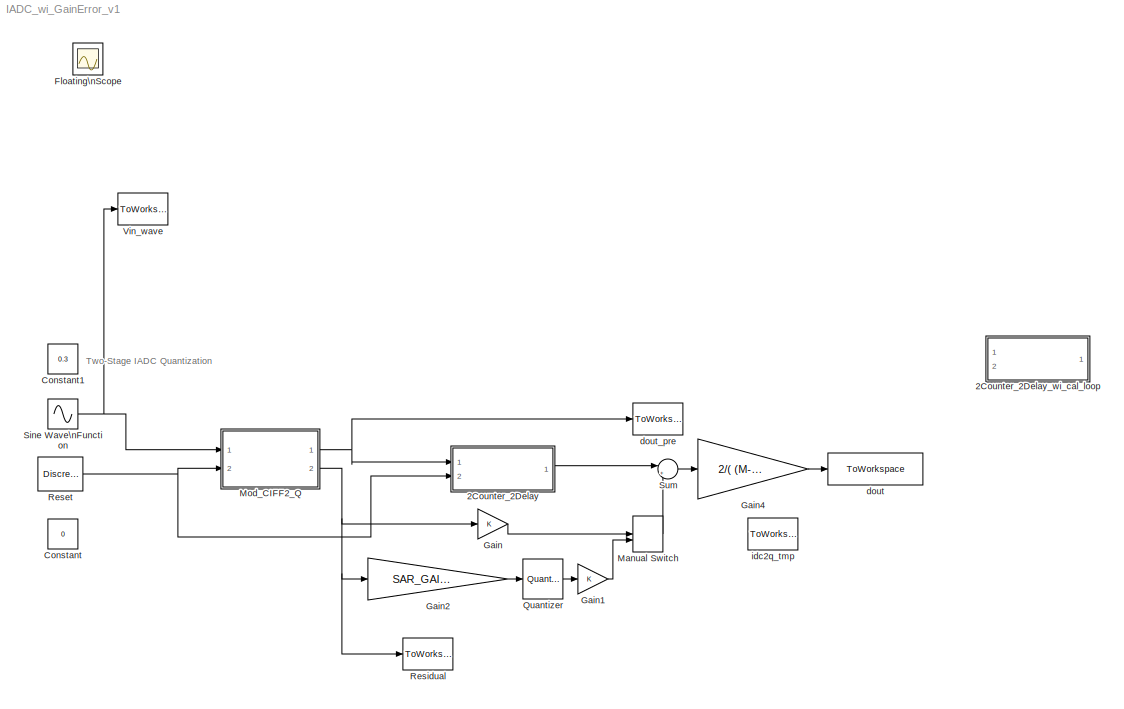
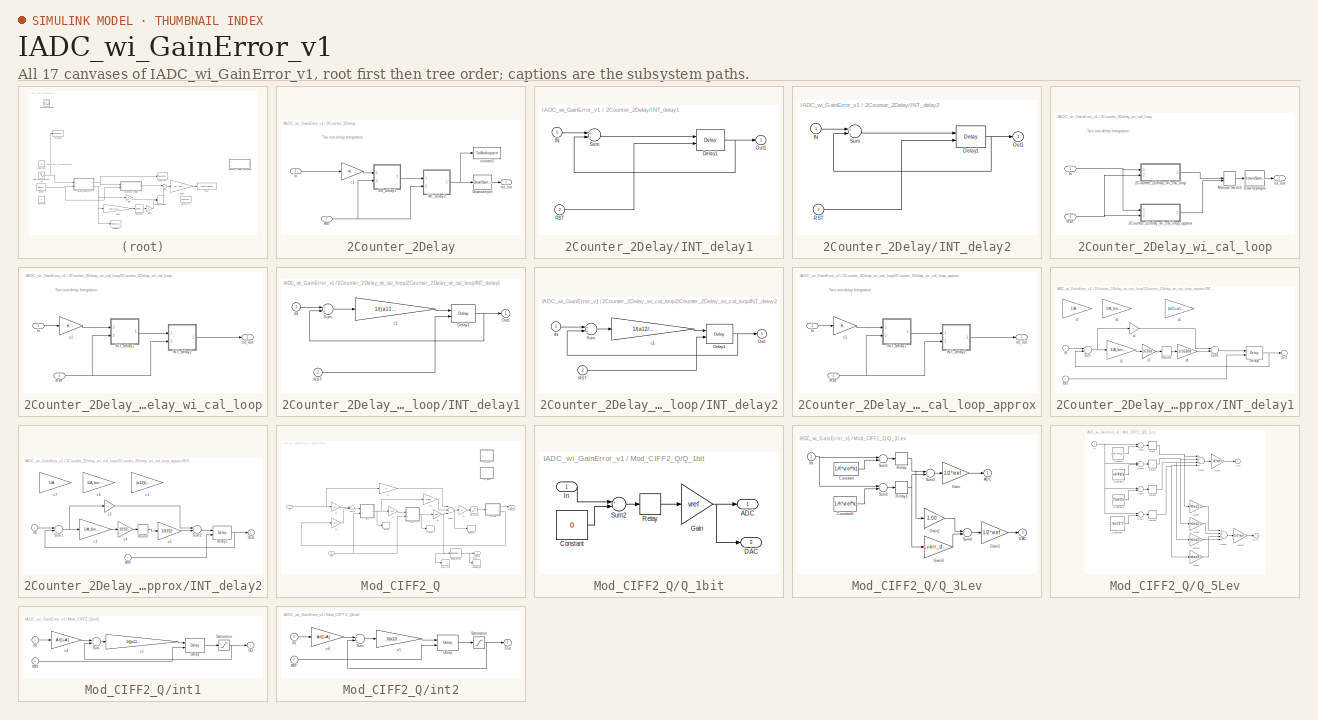
[diagram: thumbnail index - all 17 canvases of the model, root first then tree order]
MODEL IADC_wi_GainError_v1
KIND model
BLOCK [SubSystem] 2Counter_2Delay
  Ports = [2, 1]
  RequestExecContextInheritance = off
  SID = 12296
BLOCK [DownSample] 2Counter_2Delay/Downsample
  InputProcessing = Elements as channels (sample based)
  N = OSR
  RateOptions = Allow multirate processing
  SID = 12299
  phase = OSR-1
BLOCK [SubSystem] 2Counter_2Delay/INT_delay1
  Ports = [2, 1]
  RequestExecContextInheritance = off
  SID = 12872
BLOCK [Delay] 2Counter_2Delay/INT_delay1/Delay1
  DelayLength = 1
  ExternalReset = Rising
  InitialCondition = 0
  InputPortMap = u0,r5
  Ports = [2, 1]
  SID = 12875
  UserData = DataTag0
  UserDataPersistent = on
BLOCK [Inport] 2Counter_2Delay/INT_delay1/IN
  IconDisplay = Port number
  SID = 12873
BLOCK [Outport] 2Counter_2Delay/INT_delay1/Out1
  IconDisplay = Port number
  SID = 12877
  VectorParamsAs1DForOutWhenUnconnected = off
BLOCK [Inport] 2Counter_2Delay/INT_delay1/RST
  IconDisplay = Port number
  Port = 2
  SID = 12874
BLOCK [Sum] 2Counter_2Delay/INT_delay1/Sum
  Ports = [2, 1]
  SID = 12876
BLOCK [SubSystem] 2Counter_2Delay/INT_delay2
  Ports = [2, 1]
  RequestExecContextInheritance = off
  SID = 12306
BLOCK [Delay] 2Counter_2Delay/INT_delay2/Delay1
  DelayLength = 1
  ExternalReset = Rising
  InitialCondition = 0
  InputPortMap = u0,r5
  Ports = [2, 1]
  SID = 12712
  UserData = DataTag1
  UserDataPersistent = on
BLOCK [Inport] 2Counter_2Delay/INT_delay2/IN
  IconDisplay = Port number
  SID = 12307
BLOCK [Outport] 2Counter_2Delay/INT_delay2/Out1
  IconDisplay = Port number
  SID = 12311
  VectorParamsAs1DForOutWhenUnconnected = off
BLOCK [Inport] 2Counter_2Delay/INT_delay2/RST
  IconDisplay = Port number
  Port = 2
  SID = 12308
BLOCK [Sum] 2Counter_2Delay/INT_delay2/Sum
  Ports = [2, 1]
  SID = 12310
BLOCK [Inport] 2Counter_2Delay/In
  IconDisplay = Port number
  SID = 12297
BLOCK [Inport] 2Counter_2Delay/RST
  IconDisplay = Port number
  Port = 2
  SID = 12298
BLOCK [Gain] 2Counter_2Delay/c1
  SID = 12312
BLOCK [ToWorkspace] 2Counter_2Delay/counter2
  MaxDataPoints = inf
  Ports = [1]
  SID = 12616
  SampleTime = -1
  VariableName = counter2
BLOCK [Outport] 2Counter_2Delay/rst_out
  IconDisplay = Port number
  SID = 12313
  VectorParamsAs1DForOutWhenUnconnected = off
BLOCK [SubSystem] 2Counter_2Delay_wi_cal_loop
  Commented = on
  Ports = [2, 1]
  RequestExecContextInheritance = off
  SID = 12937
BLOCK [SubSystem] 2Counter_2Delay_wi_cal_loop/2Counter_2Delay_wi_cal_loop
  Ports = [2, 1]
  RequestExecContextInheritance = off
  SID = 13068
BLOCK [SubSystem] 2Counter_2Delay_wi_cal_loop/2Counter_2Delay_wi_cal_loop/INT_delay1
  Ports = [2, 1]
  RequestExecContextInheritance = off
  SID = 13072
BLOCK [Delay] 2Counter_2Delay_wi_cal_loop/2Counter_2Delay_wi_cal_loop/INT_delay1/Delay1
  DelayLength = 1
  ExternalReset = Rising
  InitialCondition = 0
  InputPortMap = u0,r5
  Ports = [2, 1]
  SID = 13075
  UserData = DataTag2
  UserDataPersistent = on
BLOCK [Inport] 2Counter_2Delay_wi_cal_loop/2Counter_2Delay_wi_cal_loop/INT_delay1/IN
  IconDisplay = Port number
  SID = 13073
BLOCK [Outport] 2Counter_2Delay_wi_cal_loop/2Counter_2Delay_wi_cal_loop/INT_delay1/Out1
  IconDisplay = Port number
  SID = 13078
  VectorParamsAs1DForOutWhenUnconnected = off
BLOCK [Inport] 2Counter_2Delay_wi_cal_loop/2Counter_2Delay_wi_cal_loop/INT_delay1/RST
  IconDisplay = Port number
  Port = 2
  SID = 13074
BLOCK [Sum] 2Counter_2Delay_wi_cal_loop/2Counter_2Delay_wi_cal_loop/INT_delay1/Sum
  Ports = [2, 1]
  SID = 13076
BLOCK [Gain] 2Counter_2Delay_wi_cal_loop/2Counter_2Delay_wi_cal_loop/INT_delay1/c1
  Gain = 1/((a11+a11)/(1+A) +1)
  SID = 13077
BLOCK [SubSystem] 2Counter_2Delay_wi_cal_loop/2Counter_2Delay_wi_cal_loop/INT_delay2
  Ports = [2, 1]
  RequestExecContextInheritance = off
  SID = 13079
BLOCK [Delay] 2Counter_2Delay_wi_cal_loop/2Counter_2Delay_wi_cal_loop/INT_delay2/Delay1
  DelayLength = 1
  ExternalReset = Rising
  InitialCondition = 0
  InputPortMap = u0,r5
  Ports = [2, 1]
  SID = 13082
  UserData = DataTag3
  UserDataPersistent = on
BLOCK [Inport] 2Counter_2Delay_wi_cal_loop/2Counter_2Delay_wi_cal_loop/INT_delay2/IN
  IconDisplay = Port number
  SID = 13080
BLOCK [Outport] 2Counter_2Delay_wi_cal_loop/2Counter_2Delay_wi_cal_loop/INT_delay2/Out1
  IconDisplay = Port number
  SID = 13085
  VectorParamsAs1DForOutWhenUnconnected = off
BLOCK [Inport] 2Counter_2Delay_wi_cal_loop/2Counter_2Delay_wi_cal_loop/INT_delay2/RST
  IconDisplay = Port number
  Port = 2
  SID = 13081
BLOCK [Sum] 2Counter_2Delay_wi_cal_loop/2Counter_2Delay_wi_cal_loop/INT_delay2/Sum
  Ports = [2, 1]
  SID = 13083
BLOCK [Gain] 2Counter_2Delay_wi_cal_loop/2Counter_2Delay_wi_cal_loop/INT_delay2/c1
  Gain = 1/(a12/(1+A) +1)
  SID = 13084
BLOCK [Inport] 2Counter_2Delay_wi_cal_loop/2Counter_2Delay_wi_cal_loop/In
  IconDisplay = Port number
  SID = 13069
BLOCK [Inport] 2Counter_2Delay_wi_cal_loop/2Counter_2Delay_wi_cal_loop/RST
  IconDisplay = Port number
  Port = 2
  SID = 13070
BLOCK [Gain] 2Counter_2Delay_wi_cal_loop/2Counter_2Delay_wi_cal_loop/c1
  SID = 13086
BLOCK [Outport] 2Counter_2Delay_wi_cal_loop/2Counter_2Delay_wi_cal_loop/rst_out
  IconDisplay = Port number
  SID = 13087
  VectorParamsAs1DForOutWhenUnconnected = off
BLOCK [SubSystem] 2Counter_2Delay_wi_cal_loop/2Counter_2Delay_wi_cal_loop_approx
  Ports = [2, 1]
  RequestExecContextInheritance = off
  SID = 13110
BLOCK [SubSystem] 2Counter_2Delay_wi_cal_loop/2Counter_2Delay_wi_cal_loop_approx/INT_delay1
  Ports = [2, 1]
  RequestExecContextInheritance = off
  SID = 13113
BLOCK [Delay] 2Counter_2Delay_wi_cal_loop/2Counter_2Delay_wi_cal_loop_approx/INT_delay1/Delay1
  DelayLength = 1
  ExternalReset = Rising
  InitialCondition = 0
  InputPortMap = u0,r5
  Ports = [2, 1]
  SID = 13116
  UserData = DataTag4
  UserDataPersistent = on
BLOCK [Inport] 2Counter_2Delay_wi_cal_loop/2Counter_2Delay_wi_cal_loop_approx/INT_delay1/IN
  IconDisplay = Port number
  SID = 13114
BLOCK [Outport] 2Counter_2Delay_wi_cal_loop/2Counter_2Delay_wi_cal_loop_approx/INT_delay1/Out1
  IconDisplay = Port number
  SID = 13119
  VectorParamsAs1DForOutWhenUnconnected = off
BLOCK [Inport] 2Counter_2Delay_wi_cal_loop/2Counter_2Delay_wi_cal_loop_approx/INT_delay1/RST
  IconDisplay = Port number
  Port = 2
  SID = 13115
BLOCK [Rounding] 2Counter_2Delay_wi_cal_loop/2Counter_2Delay_wi_cal_loop_approx/INT_delay1/Round
  Operator = round
  SID = 13133
BLOCK [Sum] 2Counter_2Delay_wi_cal_loop/2Counter_2Delay_wi_cal_loop_approx/INT_delay1/Sum
  Ports = [2, 1]
  SID = 13117
BLOCK [Sum] 2Counter_2Delay_wi_cal_loop/2Counter_2Delay_wi_cal_loop_approx/INT_delay1/Sum1
  Inputs = +-
  Ports = [2, 1]
  SID = 13131
BLOCK [Gain] 2Counter_2Delay_wi_cal_loop/2Counter_2Delay_wi_cal_loop_approx/INT_delay1/c1
  SID = 13118
BLOCK [Gain] 2Counter_2Delay_wi_cal_loop/2Counter_2Delay_wi_cal_loop_approx/INT_delay1/c2
  Gain = 1/A_binary
  SID = 13132
BLOCK [Gain] 2Counter_2Delay_wi_cal_loop/2Counter_2Delay_wi_cal_loop_approx/INT_delay1/c3
  Gain = 16384
  SID = 13134
BLOCK [Gain] 2Counter_2Delay_wi_cal_loop/2Counter_2Delay_wi_cal_loop_approx/INT_delay1/c4
  Gain = 1/16384
  SID = 13135
BLOCK [Gain] 2Counter_2Delay_wi_cal_loop/2Counter_2Delay_wi_cal_loop_approx/INT_delay1/c5
  Commented = on
  Gain = (a11+a11)/(1+A)
  SID = 13143
BLOCK [Gain] 2Counter_2Delay_wi_cal_loop/2Counter_2Delay_wi_cal_loop_approx/INT_delay1/c6
  Commented = on
  Gain = 1/A_binary
  SID = 13144
BLOCK [Gain] 2Counter_2Delay_wi_cal_loop/2Counter_2Delay_wi_cal_loop_approx/INT_delay1/c7
  Commented = on
  Gain = 1/A
  SID = 13145
BLOCK [SubSystem] 2Counter_2Delay_wi_cal_loop/2Counter_2Delay_wi_cal_loop_approx/INT_delay2
  Ports = [2, 1]
  RequestExecContextInheritance = off
  SID = 13120
BLOCK [Delay] 2Counter_2Delay_wi_cal_loop/2Counter_2Delay_wi_cal_loop_approx/INT_delay2/Delay1
  DelayLength = 1
  ExternalReset = Rising
  InitialCondition = 0
  InputPortMap = u0,r5
  Ports = [2, 1]
  SID = 13123
  UserData = DataTag5
  UserDataPersistent = on
BLOCK [Inport] 2Counter_2Delay_wi_cal_loop/2Counter_2Delay_wi_cal_loop_approx/INT_delay2/IN
  IconDisplay = Port number
  SID = 13121
BLOCK [Outport] 2Counter_2Delay_wi_cal_loop/2Counter_2Delay_wi_cal_loop_approx/INT_delay2/Out1
  IconDisplay = Port number
  SID = 13126
  VectorParamsAs1DForOutWhenUnconnected = off
BLOCK [Inport] 2Counter_2Delay_wi_cal_loop/2Counter_2Delay_wi_cal_loop_approx/INT_delay2/RST
  IconDisplay = Port number
  Port = 2
  SID = 13122
BLOCK [Rounding] 2Counter_2Delay_wi_cal_loop/2Counter_2Delay_wi_cal_loop_approx/INT_delay2/Round
  Operator = round
  SID = 13136
BLOCK [Sum] 2Counter_2Delay_wi_cal_loop/2Counter_2Delay_wi_cal_loop_approx/INT_delay2/Sum1
  Ports = [2, 1]
  SID = 13137
BLOCK [Sum] 2Counter_2Delay_wi_cal_loop/2Counter_2Delay_wi_cal_loop_approx/INT_delay2/Sum2
  Inputs = +-
  Ports = [2, 1]
  SID = 13138
BLOCK [Gain] 2Counter_2Delay_wi_cal_loop/2Counter_2Delay_wi_cal_loop_approx/INT_delay2/c1
  Commented = on
  Gain = (a12)/(1+A)
  SID = 13146
BLOCK [Gain] 2Counter_2Delay_wi_cal_loop/2Counter_2Delay_wi_cal_loop_approx/INT_delay2/c2
  SID = 13139
BLOCK [Gain] 2Counter_2Delay_wi_cal_loop/2Counter_2Delay_wi_cal_loop_approx/INT_delay2/c3
  Gain = 1/A_binary
  SID = 13140
BLOCK [Gain] 2Counter_2Delay_wi_cal_loop/2Counter_2Delay_wi_cal_loop_approx/INT_delay2/c4
  Gain = 8192
  SID = 13141
BLOCK [Gain] 2Counter_2Delay_wi_cal_loop/2Counter_2Delay_wi_cal_loop_approx/INT_delay2/c5
  Gain = 1/8192
  SID = 13142
BLOCK [Gain] 2Counter_2Delay_wi_cal_loop/2Counter_2Delay_wi_cal_loop_approx/INT_delay2/c6
  Commented = on
  Gain = 1/A_binary
  SID = 13147
BLOCK [Gain] 2Counter_2Delay_wi_cal_loop/2Counter_2Delay_wi_cal_loop_approx/INT_delay2/c7
  Commented = on
  Gain = 1/A
  SID = 13148
BLOCK [Inport] 2Counter_2Delay_wi_cal_loop/2Counter_2Delay_wi_cal_loop_approx/In
  IconDisplay = Port number
  SID = 13111
BLOCK [Inport] 2Counter_2Delay_wi_cal_loop/2Counter_2Delay_wi_cal_loop_approx/RST
  IconDisplay = Port number
  Port = 2
  SID = 13112
BLOCK [Gain] 2Counter_2Delay_wi_cal_loop/2Counter_2Delay_wi_cal_loop_approx/c1
  SID = 13127
BLOCK [Outport] 2Counter_2Delay_wi_cal_loop/2Counter_2Delay_wi_cal_loop_approx/rst_out
  IconDisplay = Port number
  SID = 13128
  VectorParamsAs1DForOutWhenUnconnected = off
BLOCK [DownSample] 2Counter_2Delay_wi_cal_loop/Downsample
  InputProcessing = Elements as channels (sample based)
  N = OSR
  RateOptions = Allow multirate processing
  SID = 12940
  phase = OSR-1
BLOCK [Inport] 2Counter_2Delay_wi_cal_loop/In
  IconDisplay = Port number
  SID = 12938
BLOCK [ManualSwitch] 2Counter_2Delay_wi_cal_loop/Manual Switch
  CurrentSetting = 0
  SID = 13130
BLOCK [Inport] 2Counter_2Delay_wi_cal_loop/RST
  IconDisplay = Port number
  Port = 2
  SID = 12939
BLOCK [Outport] 2Counter_2Delay_wi_cal_loop/rst_out
  IconDisplay = Port number
  SID = 12957
  VectorParamsAs1DForOutWhenUnconnected = off
BLOCK [Constant] Constant
  Commented = on
  SID = 12759
  Value = 0
BLOCK [Constant] Constant1
  Commented = on
  SID = 12900
  Value = 0.3
BLOCK [Scope] Floating\nScope
  Floating = off
  IOType = viewer
  NumInputPorts = 1
  Ports = []
  SID = 82
  ScopeSpecificationString = C++SS(StrPVP('Location','[376, 294, 963, 755]'),StrPVP('Open','off'),MxPVP('AxesTitles',54,'struct(''axes1'',''%<SignalLabel>'')'),StrPVP('DataFormat','StructureWithTime'),StrPVP('BlockParamSampleTime','0'),StrPVP('LimitDataPoints','on'),StrPVP('Decimation','1'),StrPVP('BlockParamSampleInput','off'))
BLOCK [Gain] Gain
  OutDataTypeStr = Inherit: Inherit via internal rule
  ParamDataTypeStr = Inherit: Inherit via internal rule
  SID = 13036
  SaturateOnIntegerOverflow = off
BLOCK [Gain] Gain1
  OutDataTypeStr = Inherit: Inherit via internal rule
  ParamDataTypeStr = Inherit: Inherit via internal rule
  SID = 13292
  SaturateOnIntegerOverflow = off
BLOCK [Gain] Gain2
  Gain = SAR_GAIN_ERROR
  OutDataTypeStr = Inherit: Inherit via internal rule
  ParamDataTypeStr = Inherit: Inherit via internal rule
  SID = 13293
  SaturateOnIntegerOverflow = off
BLOCK [Gain] Gain4
  Gain = 2/( (M-1)*(M) )
  OutDataTypeStr = Inherit: Inherit via internal rule
  ParamDataTypeStr = Inherit: Inherit via internal rule
  SID = 11902
  SaturateOnIntegerOverflow = off
BLOCK [ManualSwitch] Manual Switch
  CurrentSetting = 0
  SID = 13046
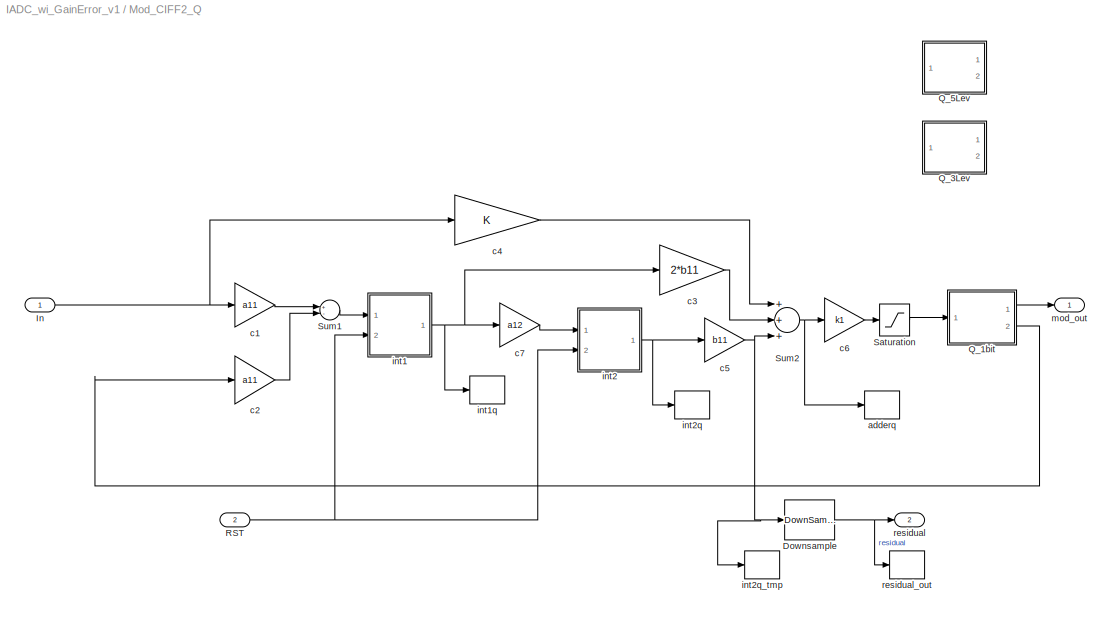
BLOCK [SubSystem] Mod_CIFF2_Q
  Ports = [2, 2]
  RequestExecContextInheritance = off
  SID = 11903
BLOCK [DownSample] Mod_CIFF2_Q/Downsample
  InputProcessing = Elements as channels (sample based)
  N = OSR
  RateOptions = Allow multirate processing
  SID = 12760
  phase = OSR-1
BLOCK [Inport] Mod_CIFF2_Q/In
  IconDisplay = Port number
  SID = 11904
BLOCK [SubSystem] Mod_CIFF2_Q/Q_1bit
  Ports = [1, 2]
  RequestExecContextInheritance = off
  SID = 11919
BLOCK [Outport] Mod_CIFF2_Q/Q_1bit/ADC
  IconDisplay = Port number
  SID = 11925
  VectorParamsAs1DForOutWhenUnconnected = off
BLOCK [Constant] Mod_CIFF2_Q/Q_1bit/Constant
  SID = 11921
  Value = 0
BLOCK [Outport] Mod_CIFF2_Q/Q_1bit/DAC
  IconDisplay = Port number
  Port = 2
  SID = 11926
  VectorParamsAs1DForOutWhenUnconnected = off
BLOCK [Gain] Mod_CIFF2_Q/Q_1bit/Gain
  Gain = vref
  OutDataTypeStr = Inherit: Inherit via internal rule
  ParamDataTypeStr = Inherit: Inherit via internal rule
  SID = 11922
  SaturateOnIntegerOverflow = off
BLOCK [Inport] Mod_CIFF2_Q/Q_1bit/In
  IconDisplay = Port number
  SID = 11920
BLOCK [Relay] Mod_CIFF2_Q/Q_1bit/Relay
  OffOutputValue = -1
  SID = 11923
  SampleTime = tclk
BLOCK [Sum] Mod_CIFF2_Q/Q_1bit/Sum2
  Inputs = +-
  Ports = [2, 1]
  SID = 11924
BLOCK [SubSystem] Mod_CIFF2_Q/Q_3Lev
  Commented = on
  Ports = [1, 2]
  RequestExecContextInheritance = off
  SID = 12583
BLOCK [Outport] Mod_CIFF2_Q/Q_3Lev/ADC
  IconDisplay = Port number
  SID = 12597
  VectorParamsAs1DForOutWhenUnconnected = off
BLOCK [Constant] Mod_CIFF2_Q/Q_3Lev/Constant
  SID = 12585
  Value = 1/4*vref*k1
BLOCK [Constant] Mod_CIFF2_Q/Q_3Lev/Constant1
  SID = 12586
  Value = -1/4*vref*k1
BLOCK [Outport] Mod_CIFF2_Q/Q_3Lev/DAC
  IconDisplay = Port number
  Port = 2
  SID = 12598
  VectorParamsAs1DForOutWhenUnconnected = off
BLOCK [Gain] Mod_CIFF2_Q/Q_3Lev/Gain
  Gain = 1/2*vref
  OutDataTypeStr = Inherit: Inherit via internal rule
  ParamDataTypeStr = Inherit: Inherit via internal rule
  SID = 12587
  SaturateOnIntegerOverflow = off
BLOCK [Gain] Mod_CIFF2_Q/Q_3Lev/Gain1
  Gain = 1/2*vref
  OutDataTypeStr = Inherit: Inherit via internal rule
  ParamDataTypeStr = Inherit: Inherit via internal rule
  SID = 12588
  SaturateOnIntegerOverflow = off
BLOCK [Gain] Mod_CIFF2_Q/Q_3Lev/Gain2
  Gain = 1.00
  OutDataTypeStr = Inherit: Inherit via internal rule
  ParamDataTypeStr = Inherit: Inherit via internal rule
  SID = 12589
  SaturateOnIntegerOverflow = off
BLOCK [Gain] Mod_CIFF2_Q/Q_3Lev/Gain3
  Gain = 1+err_dac
  OutDataTypeStr = Inherit: Inherit via internal rule
  ParamDataTypeStr = Inherit: Inherit via internal rule
  SID = 12590
  SaturateOnIntegerOverflow = off
BLOCK [Inport] Mod_CIFF2_Q/Q_3Lev/IN
  IconDisplay = Port number
  SID = 12584
BLOCK [Relay] Mod_CIFF2_Q/Q_3Lev/Relay
  OffOutputValue = -1
  SID = 12591
  SampleTime = tclk
BLOCK [Relay] Mod_CIFF2_Q/Q_3Lev/Relay1
  OffOutputValue = -1
  SID = 12592
  SampleTime = tclk
BLOCK [Sum] Mod_CIFF2_Q/Q_3Lev/Sum1
  Inputs = +-
  Ports = [2, 1]
  SID = 12593
BLOCK [Sum] Mod_CIFF2_Q/Q_3Lev/Sum2
  Inputs = +-
  Ports = [2, 1]
  SID = 12594
BLOCK [Sum] Mod_CIFF2_Q/Q_3Lev/Sum3
  Ports = [2, 1]
  SID = 12595
BLOCK [Sum] Mod_CIFF2_Q/Q_3Lev/Sum4
  Ports = [2, 1]
  SID = 12596
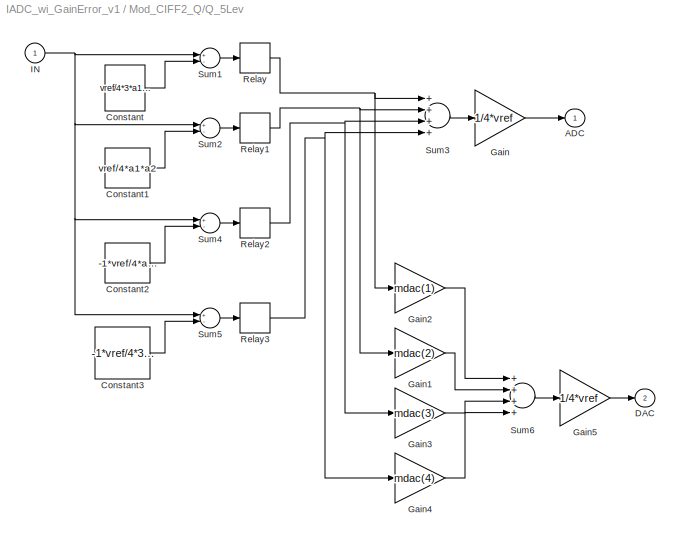
BLOCK [SubSystem] Mod_CIFF2_Q/Q_5Lev
  Commented = on
  Ports = [1, 2]
  RequestExecContextInheritance = off
  SID = 12559
BLOCK [Outport] Mod_CIFF2_Q/Q_5Lev/ADC
  IconDisplay = Port number
  SID = 12581
  VectorParamsAs1DForOutWhenUnconnected = off
BLOCK [Constant] Mod_CIFF2_Q/Q_5Lev/Constant
  SID = 12561
  Value = vref/4*3*a1*a2
BLOCK [Constant] Mod_CIFF2_Q/Q_5Lev/Constant1
  SID = 12562
  Value = vref/4*a1*a2
BLOCK [Constant] Mod_CIFF2_Q/Q_5Lev/Constant2
  SID = 12563
  Value = -1*vref/4*a1*a2
BLOCK [Constant] Mod_CIFF2_Q/Q_5Lev/Constant3
  SID = 12564
  Value = -1*vref/4*3*a1*a2
BLOCK [Outport] Mod_CIFF2_Q/Q_5Lev/DAC
  IconDisplay = Port number
  Port = 2
  SID = 12582
  VectorParamsAs1DForOutWhenUnconnected = off
BLOCK [Gain] Mod_CIFF2_Q/Q_5Lev/Gain
  Gain = 1/4*vref
  OutDataTypeStr = Inherit: Inherit via internal rule
  ParamDataTypeStr = Inherit: Inherit via internal rule
  SID = 12565
  SaturateOnIntegerOverflow = off
BLOCK [Gain] Mod_CIFF2_Q/Q_5Lev/Gain1
  Gain = mdac(2)
  OutDataTypeStr = Inherit: Inherit via internal rule
  ParamDataTypeStr = Inherit: Inherit via internal rule
  SID = 12566
  SaturateOnIntegerOverflow = off
BLOCK [Gain] Mod_CIFF2_Q/Q_5Lev/Gain2
  Gain = mdac(1)
  OutDataTypeStr = Inherit: Inherit via internal rule
  ParamDataTypeStr = Inherit: Inherit via internal rule
  SID = 12567
  SaturateOnIntegerOverflow = off
BLOCK [Gain] Mod_CIFF2_Q/Q_5Lev/Gain3
  Gain = mdac(3)
  OutDataTypeStr = Inherit: Inherit via internal rule
  ParamDataTypeStr = Inherit: Inherit via internal rule
  SID = 12568
  SaturateOnIntegerOverflow = off
BLOCK [Gain] Mod_CIFF2_Q/Q_5Lev/Gain4
  Gain = mdac(4)
  OutDataTypeStr = Inherit: Inherit via internal rule
  ParamDataTypeStr = Inherit: Inherit via internal rule
  SID = 12569
  SaturateOnIntegerOverflow = off
BLOCK [Gain] Mod_CIFF2_Q/Q_5Lev/Gain5
  Gain = 1/4*vref
  OutDataTypeStr = Inherit: Inherit via internal rule
  ParamDataTypeStr = Inherit: Inherit via internal rule
  SID = 12570
  SaturateOnIntegerOverflow = off
BLOCK [Inport] Mod_CIFF2_Q/Q_5Lev/IN
  IconDisplay = Port number
  SID = 12560
BLOCK [Relay] Mod_CIFF2_Q/Q_5Lev/Relay
  OffOutputValue = -1
  SID = 12571
  SampleTime = tclk
BLOCK [Relay] Mod_CIFF2_Q/Q_5Lev/Relay1
  OffOutputValue = -1
  SID = 12572
  SampleTime = tclk
BLOCK [Relay] Mod_CIFF2_Q/Q_5Lev/Relay2
  OffOutputValue = -1
  SID = 12573
  SampleTime = tclk
BLOCK [Relay] Mod_CIFF2_Q/Q_5Lev/Relay3
  OffOutputValue = -1
  SID = 12574
  SampleTime = tclk
BLOCK [Sum] Mod_CIFF2_Q/Q_5Lev/Sum1
  Inputs = +-
  Ports = [2, 1]
  SID = 12575
BLOCK [Sum] Mod_CIFF2_Q/Q_5Lev/Sum2
  Inputs = +-
  Ports = [2, 1]
  SID = 12576
BLOCK [Sum] Mod_CIFF2_Q/Q_5Lev/Sum3
  Inputs = ++++
  Ports = [4, 1]
  SID = 12577
BLOCK [Sum] Mod_CIFF2_Q/Q_5Lev/Sum4
  Inputs = +-
  Ports = [2, 1]
  SID = 12578
BLOCK [Sum] Mod_CIFF2_Q/Q_5Lev/Sum5
  Inputs = +-
  Ports = [2, 1]
  SID = 12579
BLOCK [Sum] Mod_CIFF2_Q/Q_5Lev/Sum6
  Inputs = ++++
  Ports = [4, 1]
  SID = 12580
BLOCK [Inport] Mod_CIFF2_Q/RST
  IconDisplay = Port number
  Port = 2
  SID = 11905
BLOCK [Saturate] Mod_CIFF2_Q/Saturation
  InputPortMap = u0
  LowerLimit = -1*adder_max
  Ports = [1, 1]
  SID = 11967
  UpperLimit = adder_max*1
BLOCK [Sum] Mod_CIFF2_Q/Sum1
  Inputs = +-
  Ports = [2, 1]
  SID = 11968
BLOCK [Sum] Mod_CIFF2_Q/Sum2
  Inputs = +++
  Ports = [3, 1]
  SID = 11969
BLOCK [ToWorkspace] Mod_CIFF2_Q/adderq
  MaxDataPoints = inf
  Ports = [1]
  SID = 12749
  SampleTime = -1
  VariableName = adderq
BLOCK [Gain] Mod_CIFF2_Q/c1
  Gain = a11
  SID = 11970
BLOCK [Gain] Mod_CIFF2_Q/c2
  Gain = a11
  SID = 11971
BLOCK [Gain] Mod_CIFF2_Q/c3
  Gain = 2*b11
  SID = 11972
BLOCK [Gain] Mod_CIFF2_Q/c4
  SID = 11973
BLOCK [Gain] Mod_CIFF2_Q/c5
  Gain = b11
  SID = 11974
BLOCK [Gain] Mod_CIFF2_Q/c6
  Gain = k1
  SID = 11975
BLOCK [Gain] Mod_CIFF2_Q/c7
  Gain = a12
  SID = 12906
BLOCK [SubSystem] Mod_CIFF2_Q/int1
  Ports = [2, 1]
  RequestExecContextInheritance = off
  SID = 12646
BLOCK [Delay] Mod_CIFF2_Q/int1/Delay
  DelayLength = 1
  ExternalReset = Rising
  InitialCondition = 0
  InputPortMap = u0,r5
  Ports = [2, 1]
  SID = 12649
  UserData = DataTag6
  UserDataPersistent = on
BLOCK [Inport] Mod_CIFF2_Q/int1/IN
  IconDisplay = Port number
  SID = 12647
BLOCK [Outport] Mod_CIFF2_Q/int1/Out
  IconDisplay = Port number
  SID = 12653
  VectorParamsAs1DForOutWhenUnconnected = off
BLOCK [Inport] Mod_CIFF2_Q/int1/RST
  IconDisplay = Port number
  Port = 2
  SID = 12648
BLOCK [Saturate] Mod_CIFF2_Q/int1/Saturation
  InputPortMap = u0
  LowerLimit = -1*Amax
  Ports = [1, 1]
  SID = 12650
  UpperLimit = Amax
BLOCK [Sum] Mod_CIFF2_Q/int1/Sum
  Ports = [2, 1]
  SID = 12651
BLOCK [Gain] Mod_CIFF2_Q/int1/c1
  Gain = 1/((a11+a11)/(1+A) +1)
  SID = 12925
BLOCK [Gain] Mod_CIFF2_Q/int1/c4
  Gain = A/(1+A)
  SID = 12904
BLOCK [ToWorkspace] Mod_CIFF2_Q/int1q
  MaxDataPoints = inf
  Ports = [1]
  SID = 11976
  SampleTime = -1
  VariableName = int1q
BLOCK [SubSystem] Mod_CIFF2_Q/int2
  Ports = [2, 1]
  RequestExecContextInheritance = off
  SID = 12926
BLOCK [Delay] Mod_CIFF2_Q/int2/Delay
  DelayLength = 1
  ExternalReset = Rising
  InitialCondition = 0
  InputPortMap = u0,r5
  Ports = [2, 1]
  SID = 12929
  UserData = DataTag7
  UserDataPersistent = on
BLOCK [Inport] Mod_CIFF2_Q/int2/IN
  IconDisplay = Port number
  SID = 12927
BLOCK [Outport] Mod_CIFF2_Q/int2/Out
  IconDisplay = Port number
  SID = 12934
  VectorParamsAs1DForOutWhenUnconnected = off
BLOCK [Inport] Mod_CIFF2_Q/int2/RST
  IconDisplay = Port number
  Port = 2
  SID = 12928
BLOCK [Saturate] Mod_CIFF2_Q/int2/Saturation
  InputPortMap = u0
  LowerLimit = -1*Amax
  Ports = [1, 1]
  SID = 12930
  UpperLimit = Amax
BLOCK [Sum] Mod_CIFF2_Q/int2/Sum
  Ports = [2, 1]
  SID = 12931
BLOCK [Gain] Mod_CIFF2_Q/int2/c1
  Gain = 1/(a12/(1+A) +1)
  SID = 12932
BLOCK [Gain] Mod_CIFF2_Q/int2/c4
  Gain = A/(1+A)
  SID = 12933
BLOCK [ToWorkspace] Mod_CIFF2_Q/int2q
  MaxDataPoints = inf
  Ports = [1]
  SID = 11977
  SampleTime = -1
  VariableName = int2q
BLOCK [ToWorkspace] Mod_CIFF2_Q/int2q_tmp
  MaxDataPoints = inf
  Ports = [1]
  SID = 12871
  SampleTime = -1
  VariableName = int2q_tmp
BLOCK [Outport] Mod_CIFF2_Q/mod_out
  IconDisplay = Port number
  SID = 11988
  VectorParamsAs1DForOutWhenUnconnected = off
BLOCK [Outport] Mod_CIFF2_Q/residual
  IconDisplay = Port number
  Port = 2
  SID = 12761
  VectorParamsAs1DForOutWhenUnconnected = off
BLOCK [ToWorkspace] Mod_CIFF2_Q/residual_out
  MaxDataPoints = inf
  Ports = [1]
  SID = 12846
  SampleTime = -1
  VariableName = residual
BLOCK [Quantizer] Quantizer
  LinearizeAsGain = off
  QuantizationInterval = vfs/1024
  SID = 13043
BLOCK [DiscretePulseGenerator] Reset
  Period = OSR
  Ports = [0, 1]
  SID = 3
  SampleTime = tclk
BLOCK [ToWorkspace] Residual
  Commented = on
  MaxDataPoints = inf
  Ports = [1]
  SID = 13040
  SampleTime = -1
  VariableName = Residual
BLOCK [Sin] Sine Wave\nFunction
  Amplitude = vin_amp
  Frequency = fsig*2*pi
  Ports = [0, 1]
  SID = 12750
  SampleTime = tclk
BLOCK [Sum] Sum
  IconShape = round
  InputSameDT = off
  Inputs = |++
  OutDataTypeStr = Inherit: Inherit via internal rule
  Ports = [2, 1]
  SID = 12869
  SaturateOnIntegerOverflow = off
BLOCK [ToWorkspace] Vin_wave
  Commented = on
  MaxDataPoints = inf
  Ports = [1]
  SID = 13045
  SampleTime = -1
  VariableName = Vin_wave
BLOCK [ToWorkspace] dout
  MaxDataPoints = inf
  Ports = [1]
  SID = 12033
  SampleTime = -1
  VariableName = out_no_cal
BLOCK [ToWorkspace] dout_pre
  MaxDataPoints = inf
  Ports = [1]
  SID = 12740
  SampleTime = -1
  VariableName = dout_pre
BLOCK [ToWorkspace] idc2q_tmp
  Commented = on
  MaxDataPoints = inf
  Ports = [1]
  SID = 12870
  SampleTime = -1
  VariableName = idc2q_tmp
ANNOTATION (root): Two-Stage IADC Quantization
ANNOTATION 2Counter_2Delay: Two non-delay Integrators
ANNOTATION 2Counter_2Delay_wi_cal_loop: Two non-delay Integrators
ANNOTATION 2Counter_2Delay_wi_cal_loop/2Counter_2Delay_wi_cal_loop: Two non-delay Integrators
ANNOTATION 2Counter_2Delay_wi_cal_loop/2Counter_2Delay_wi_cal_loop_approx: Two non-delay Integrators
LINE 2Counter_2Delay/Downsample:1 -> 2Counter_2Delay/rst_out:1
NET 2Counter_2Delay/INT_delay1/Delay1:1 -> 2Counter_2Delay/INT_delay1/Out1:1, 2Counter_2Delay/INT_delay1/Sum:2
LINE 2Counter_2Delay/INT_delay1/IN:1 -> 2Counter_2Delay/INT_delay1/Sum:1
LINE 2Counter_2Delay/INT_delay1/RST:1 -> 2Counter_2Delay/INT_delay1/Delay1:2
LINE 2Counter_2Delay/INT_delay1/Sum:1 -> 2Counter_2Delay/INT_delay1/Delay1:1
LINE 2Counter_2Delay/INT_delay1:1 -> 2Counter_2Delay/INT_delay2:1
NET 2Counter_2Delay/INT_delay2/Delay1:1 -> 2Counter_2Delay/INT_delay2/Out1:1, 2Counter_2Delay/INT_delay2/Sum:2
LINE 2Counter_2Delay/INT_delay2/IN:1 -> 2Counter_2Delay/INT_delay2/Sum:1
LINE 2Counter_2Delay/INT_delay2/RST:1 -> 2Counter_2Delay/INT_delay2/Delay1:2
LINE 2Counter_2Delay/INT_delay2/Sum:1 -> 2Counter_2Delay/INT_delay2/Delay1:1
NET 2Counter_2Delay/INT_delay2:1 -> 2Counter_2Delay/Downsample:1, 2Counter_2Delay/counter2:1
LINE 2Counter_2Delay/In:1 -> 2Counter_2Delay/c1:1
NET 2Counter_2Delay/RST:1 -> 2Counter_2Delay/INT_delay1:2, 2Counter_2Delay/INT_delay2:2
LINE 2Counter_2Delay/c1:1 -> 2Counter_2Delay/INT_delay1:1
LINE 2Counter_2Delay:1 -> Sum:1
NET 2Counter_2Delay_wi_cal_loop/2Counter_2Delay_wi_cal_loop/INT_delay1/Delay1:1 -> 2Counter_2Delay_wi_cal_loop/2Counter_2Delay_wi_cal_loop/INT_delay1/Out1:1, 2Counter_2Delay_wi_cal_loop/2Counter_2Delay_wi_cal_loop/INT_delay1/Sum:2
LINE 2Counter_2Delay_wi_cal_loop/2Counter_2Delay_wi_cal_loop/INT_delay1/IN:1 -> 2Counter_2Delay_wi_cal_loop/2Counter_2Delay_wi_cal_loop/INT_delay1/Sum:1
LINE 2Counter_2Delay_wi_cal_loop/2Counter_2Delay_wi_cal_loop/INT_delay1/RST:1 -> 2Counter_2Delay_wi_cal_loop/2Counter_2Delay_wi_cal_loop/INT_delay1/Delay1:2
LINE 2Counter_2Delay_wi_cal_loop/2Counter_2Delay_wi_cal_loop/INT_delay1/Sum:1 -> 2Counter_2Delay_wi_cal_loop/2Counter_2Delay_wi_cal_loop/INT_delay1/c1:1
LINE 2Counter_2Delay_wi_cal_loop/2Counter_2Delay_wi_cal_loop/INT_delay1/c1:1 -> 2Counter_2Delay_wi_cal_loop/2Counter_2Delay_wi_cal_loop/INT_delay1/Delay1:1
LINE 2Counter_2Delay_wi_cal_loop/2Counter_2Delay_wi_cal_loop/INT_delay1:1 -> 2Counter_2Delay_wi_cal_loop/2Counter_2Delay_wi_cal_loop/INT_delay2:1
NET 2Counter_2Delay_wi_cal_loop/2Counter_2Delay_wi_cal_loop/INT_delay2/Delay1:1 -> 2Counter_2Delay_wi_cal_loop/2Counter_2Delay_wi_cal_loop/INT_delay2/Out1:1, 2Counter_2Delay_wi_cal_loop/2Counter_2Delay_wi_cal_loop/INT_delay2/Sum:2
LINE 2Counter_2Delay_wi_cal_loop/2Counter_2Delay_wi_cal_loop/INT_delay2/IN:1 -> 2Counter_2Delay_wi_cal_loop/2Counter_2Delay_wi_cal_loop/INT_delay2/Sum:1
LINE 2Counter_2Delay_wi_cal_loop/2Counter_2Delay_wi_cal_loop/INT_delay2/RST:1 -> 2Counter_2Delay_wi_cal_loop/2Counter_2Delay_wi_cal_loop/INT_delay2/Delay1:2
LINE 2Counter_2Delay_wi_cal_loop/2Counter_2Delay_wi_cal_loop/INT_delay2/Sum:1 -> 2Counter_2Delay_wi_cal_loop/2Counter_2Delay_wi_cal_loop/INT_delay2/c1:1
LINE 2Counter_2Delay_wi_cal_loop/2Counter_2Delay_wi_cal_loop/INT_delay2/c1:1 -> 2Counter_2Delay_wi_cal_loop/2Counter_2Delay_wi_cal_loop/INT_delay2/Delay1:1
LINE 2Counter_2Delay_wi_cal_loop/2Counter_2Delay_wi_cal_loop/INT_delay2:1 -> 2Counter_2Delay_wi_cal_loop/2Counter_2Delay_wi_cal_loop/rst_out:1
LINE 2Counter_2Delay_wi_cal_loop/2Counter_2Delay_wi_cal_loop/In:1 -> 2Counter_2Delay_wi_cal_loop/2Counter_2Delay_wi_cal_loop/c1:1
NET 2Counter_2Delay_wi_cal_loop/2Counter_2Delay_wi_cal_loop/RST:1 -> 2Counter_2Delay_wi_cal_loop/2Counter_2Delay_wi_cal_loop/INT_delay1:2, 2Counter_2Delay_wi_cal_loop/2Counter_2Delay_wi_cal_loop/INT_delay2:2
LINE 2Counter_2Delay_wi_cal_loop/2Counter_2Delay_wi_cal_loop/c1:1 -> 2Counter_2Delay_wi_cal_loop/2Counter_2Delay_wi_cal_loop/INT_delay1:1
LINE 2Counter_2Delay_wi_cal_loop/2Counter_2Delay_wi_cal_loop:1 -> 2Counter_2Delay_wi_cal_loop/Manual Switch:1
NET 2Counter_2Delay_wi_cal_loop/2Counter_2Delay_wi_cal_loop_approx/INT_delay1/Delay1:1 -> 2Counter_2Delay_wi_cal_loop/2Counter_2Delay_wi_cal_loop_approx/INT_delay1/Out1:1, 2Counter_2Delay_wi_cal_loop/2Counter_2Delay_wi_cal_loop_approx/INT_delay1/Sum:2
LINE 2Counter_2Delay_wi_cal_loop/2Counter_2Delay_wi_cal_loop_approx/INT_delay1/IN:1 -> 2Counter_2Delay_wi_cal_loop/2Counter_2Delay_wi_cal_loop_approx/INT_delay1/Sum:1
LINE 2Counter_2Delay_wi_cal_loop/2Counter_2Delay_wi_cal_loop_approx/INT_delay1/RST:1 -> 2Counter_2Delay_wi_cal_loop/2Counter_2Delay_wi_cal_loop_approx/INT_delay1/Delay1:2
LINE 2Counter_2Delay_wi_cal_loop/2Counter_2Delay_wi_cal_loop_approx/INT_delay1/Round:1 -> 2Counter_2Delay_wi_cal_loop/2Counter_2Delay_wi_cal_loop_approx/INT_delay1/c4:1
LINE 2Counter_2Delay_wi_cal_loop/2Counter_2Delay_wi_cal_loop_approx/INT_delay1/Sum1:1 -> 2Counter_2Delay_wi_cal_loop/2Counter_2Delay_wi_cal_loop_approx/INT_delay1/Delay1:1
NET 2Counter_2Delay_wi_cal_loop/2Counter_2Delay_wi_cal_loop_approx/INT_delay1/Sum:1 -> 2Counter_2Delay_wi_cal_loop/2Counter_2Delay_wi_cal_loop_approx/INT_delay1/c1:1, 2Counter_2Delay_wi_cal_loop/2Counter_2Delay_wi_cal_loop_approx/INT_delay1/c2:1
LINE 2Counter_2Delay_wi_cal_loop/2Counter_2Delay_wi_cal_loop_approx/INT_delay1/c1:1 -> 2Counter_2Delay_wi_cal_loop/2Counter_2Delay_wi_cal_loop_approx/INT_delay1/Sum1:1
LINE 2Counter_2Delay_wi_cal_loop/2Counter_2Delay_wi_cal_loop_approx/INT_delay1/c2:1 -> 2Counter_2Delay_wi_cal_loop/2Counter_2Delay_wi_cal_loop_approx/INT_delay1/c3:1
LINE 2Counter_2Delay_wi_cal_loop/2Counter_2Delay_wi_cal_loop_approx/INT_delay1/c3:1 -> 2Counter_2Delay_wi_cal_loop/2Counter_2Delay_wi_cal_loop_approx/INT_delay1/Round:1
LINE 2Counter_2Delay_wi_cal_loop/2Counter_2Delay_wi_cal_loop_approx/INT_delay1/c4:1 -> 2Counter_2Delay_wi_cal_loop/2Counter_2Delay_wi_cal_loop_approx/INT_delay1/Sum1:2
LINE 2Counter_2Delay_wi_cal_loop/2Counter_2Delay_wi_cal_loop_approx/INT_delay1:1 -> 2Counter_2Delay_wi_cal_loop/2Counter_2Delay_wi_cal_loop_approx/INT_delay2:1
NET 2Counter_2Delay_wi_cal_loop/2Counter_2Delay_wi_cal_loop_approx/INT_delay2/Delay1:1 -> 2Counter_2Delay_wi_cal_loop/2Counter_2Delay_wi_cal_loop_approx/INT_delay2/Out1:1, 2Counter_2Delay_wi_cal_loop/2Counter_2Delay_wi_cal_loop_approx/INT_delay2/Sum1:2
LINE 2Counter_2Delay_wi_cal_loop/2Counter_2Delay_wi_cal_loop_approx/INT_delay2/IN:1 -> 2Counter_2Delay_wi_cal_loop/2Counter_2Delay_wi_cal_loop_approx/INT_delay2/Sum1:1
LINE 2Counter_2Delay_wi_cal_loop/2Counter_2Delay_wi_cal_loop_approx/INT_delay2/RST:1 -> 2Counter_2Delay_wi_cal_loop/2Counter_2Delay_wi_cal_loop_approx/INT_delay2/Delay1:2
LINE 2Counter_2Delay_wi_cal_loop/2Counter_2Delay_wi_cal_loop_approx/INT_delay2/Round:1 -> 2Counter_2Delay_wi_cal_loop/2Counter_2Delay_wi_cal_loop_approx/INT_delay2/c5:1
NET 2Counter_2Delay_wi_cal_loop/2Counter_2Delay_wi_cal_loop_approx/INT_delay2/Sum1:1 -> 2Counter_2Delay_wi_cal_loop/2Counter_2Delay_wi_cal_loop_approx/INT_delay2/c2:1, 2Counter_2Delay_wi_cal_loop/2Counter_2Delay_wi_cal_loop_approx/INT_delay2/c3:1
LINE 2Counter_2Delay_wi_cal_loop/2Counter_2Delay_wi_cal_loop_approx/INT_delay2/Sum2:1 -> 2Counter_2Delay_wi_cal_loop/2Counter_2Delay_wi_cal_loop_approx/INT_delay2/Delay1:1
LINE 2Counter_2Delay_wi_cal_loop/2Counter_2Delay_wi_cal_loop_approx/INT_delay2/c2:1 -> 2Counter_2Delay_wi_cal_loop/2Counter_2Delay_wi_cal_loop_approx/INT_delay2/Sum2:1
LINE 2Counter_2Delay_wi_cal_loop/2Counter_2Delay_wi_cal_loop_approx/INT_delay2/c3:1 -> 2Counter_2Delay_wi_cal_loop/2Counter_2Delay_wi_cal_loop_approx/INT_delay2/c4:1
LINE 2Counter_2Delay_wi_cal_loop/2Counter_2Delay_wi_cal_loop_approx/INT_delay2/c4:1 -> 2Counter_2Delay_wi_cal_loop/2Counter_2Delay_wi_cal_loop_approx/INT_delay2/Round:1
LINE 2Counter_2Delay_wi_cal_loop/2Counter_2Delay_wi_cal_loop_approx/INT_delay2/c5:1 -> 2Counter_2Delay_wi_cal_loop/2Counter_2Delay_wi_cal_loop_approx/INT_delay2/Sum2:2
LINE 2Counter_2Delay_wi_cal_loop/2Counter_2Delay_wi_cal_loop_approx/INT_delay2:1 -> 2Counter_2Delay_wi_cal_loop/2Counter_2Delay_wi_cal_loop_approx/rst_out:1
LINE 2Counter_2Delay_wi_cal_loop/2Counter_2Delay_wi_cal_loop_approx/In:1 -> 2Counter_2Delay_wi_cal_loop/2Counter_2Delay_wi_cal_loop_approx/c1:1
NET 2Counter_2Delay_wi_cal_loop/2Counter_2Delay_wi_cal_loop_approx/RST:1 -> 2Counter_2Delay_wi_cal_loop/2Counter_2Delay_wi_cal_loop_approx/INT_delay1:2, 2Counter_2Delay_wi_cal_loop/2Counter_2Delay_wi_cal_loop_approx/INT_delay2:2
LINE 2Counter_2Delay_wi_cal_loop/2Counter_2Delay_wi_cal_loop_approx/c1:1 -> 2Counter_2Delay_wi_cal_loop/2Counter_2Delay_wi_cal_loop_approx/INT_delay1:1
LINE 2Counter_2Delay_wi_cal_loop/2Counter_2Delay_wi_cal_loop_approx:1 -> 2Counter_2Delay_wi_cal_loop/Manual Switch:2
LINE 2Counter_2Delay_wi_cal_loop/Downsample:1 -> 2Counter_2Delay_wi_cal_loop/rst_out:1
NET 2Counter_2Delay_wi_cal_loop/In:1 -> 2Counter_2Delay_wi_cal_loop/2Counter_2Delay_wi_cal_loop:1, 2Counter_2Delay_wi_cal_loop/2Counter_2Delay_wi_cal_loop_approx:1
LINE 2Counter_2Delay_wi_cal_loop/Manual Switch:1 -> 2Counter_2Delay_wi_cal_loop/Downsample:1
NET 2Counter_2Delay_wi_cal_loop/RST:1 -> 2Counter_2Delay_wi_cal_loop/2Counter_2Delay_wi_cal_loop:2, 2Counter_2Delay_wi_cal_loop/2Counter_2Delay_wi_cal_loop_approx:2
LINE Gain1:1 -> Manual Switch:2
LINE Gain2:1 -> Quantizer:1
LINE Gain4:1 -> dout:1
LINE Gain:1 -> Manual Switch:1
LINE Manual Switch:1 -> Sum:2
NET Mod_CIFF2_Q/Downsample:1 -> Mod_CIFF2_Q/residual:1, Mod_CIFF2_Q/residual_out:1
NET Mod_CIFF2_Q/In:1 -> Mod_CIFF2_Q/c1:1, Mod_CIFF2_Q/c4:1
LINE Mod_CIFF2_Q/Q_1bit/Constant:1 -> Mod_CIFF2_Q/Q_1bit/Sum2:2
NET Mod_CIFF2_Q/Q_1bit/Gain:1 -> Mod_CIFF2_Q/Q_1bit/ADC:1, Mod_CIFF2_Q/Q_1bit/DAC:1
LINE Mod_CIFF2_Q/Q_1bit/In:1 -> Mod_CIFF2_Q/Q_1bit/Sum2:1
LINE Mod_CIFF2_Q/Q_1bit/Relay:1 -> Mod_CIFF2_Q/Q_1bit/Gain:1
LINE Mod_CIFF2_Q/Q_1bit/Sum2:1 -> Mod_CIFF2_Q/Q_1bit/Relay:1
LINE Mod_CIFF2_Q/Q_1bit:1 -> Mod_CIFF2_Q/mod_out:1
LINE Mod_CIFF2_Q/Q_1bit:2 -> Mod_CIFF2_Q/c2:1
LINE Mod_CIFF2_Q/Q_3Lev/Constant1:1 -> Mod_CIFF2_Q/Q_3Lev/Sum2:2
LINE Mod_CIFF2_Q/Q_3Lev/Constant:1 -> Mod_CIFF2_Q/Q_3Lev/Sum1:2
LINE Mod_CIFF2_Q/Q_3Lev/Gain1:1 -> Mod_CIFF2_Q/Q_3Lev/DAC:1
LINE Mod_CIFF2_Q/Q_3Lev/Gain2:1 -> Mod_CIFF2_Q/Q_3Lev/Sum4:1
LINE Mod_CIFF2_Q/Q_3Lev/Gain3:1 -> Mod_CIFF2_Q/Q_3Lev/Sum4:2
LINE Mod_CIFF2_Q/Q_3Lev/Gain:1 -> Mod_CIFF2_Q/Q_3Lev/ADC:1
NET Mod_CIFF2_Q/Q_3Lev/IN:1 -> Mod_CIFF2_Q/Q_3Lev/Sum1:1, Mod_CIFF2_Q/Q_3Lev/Sum2:1
NET Mod_CIFF2_Q/Q_3Lev/Relay1:1 -> Mod_CIFF2_Q/Q_3Lev/Gain3:1, Mod_CIFF2_Q/Q_3Lev/Sum3:2
NET Mod_CIFF2_Q/Q_3Lev/Relay:1 -> Mod_CIFF2_Q/Q_3Lev/Gain2:1, Mod_CIFF2_Q/Q_3Lev/Sum3:1
LINE Mod_CIFF2_Q/Q_3Lev/Sum1:1 -> Mod_CIFF2_Q/Q_3Lev/Relay:1
LINE Mod_CIFF2_Q/Q_3Lev/Sum2:1 -> Mod_CIFF2_Q/Q_3Lev/Relay1:1
LINE Mod_CIFF2_Q/Q_3Lev/Sum3:1 -> Mod_CIFF2_Q/Q_3Lev/Gain:1
LINE Mod_CIFF2_Q/Q_3Lev/Sum4:1 -> Mod_CIFF2_Q/Q_3Lev/Gain1:1
LINE Mod_CIFF2_Q/Q_5Lev/Constant1:1 -> Mod_CIFF2_Q/Q_5Lev/Sum2:2
LINE Mod_CIFF2_Q/Q_5Lev/Constant2:1 -> Mod_CIFF2_Q/Q_5Lev/Sum4:2
LINE Mod_CIFF2_Q/Q_5Lev/Constant3:1 -> Mod_CIFF2_Q/Q_5Lev/Sum5:2
LINE Mod_CIFF2_Q/Q_5Lev/Constant:1 -> Mod_CIFF2_Q/Q_5Lev/Sum1:2
LINE Mod_CIFF2_Q/Q_5Lev/Gain1:1 -> Mod_CIFF2_Q/Q_5Lev/Sum6:2
LINE Mod_CIFF2_Q/Q_5Lev/Gain2:1 -> Mod_CIFF2_Q/Q_5Lev/Sum6:1
LINE Mod_CIFF2_Q/Q_5Lev/Gain3:1 -> Mod_CIFF2_Q/Q_5Lev/Sum6:3
LINE Mod_CIFF2_Q/Q_5Lev/Gain4:1 -> Mod_CIFF2_Q/Q_5Lev/Sum6:4
LINE Mod_CIFF2_Q/Q_5Lev/Gain5:1 -> Mod_CIFF2_Q/Q_5Lev/DAC:1
LINE Mod_CIFF2_Q/Q_5Lev/Gain:1 -> Mod_CIFF2_Q/Q_5Lev/ADC:1
NET Mod_CIFF2_Q/Q_5Lev/IN:1 -> Mod_CIFF2_Q/Q_5Lev/Sum1:1, Mod_CIFF2_Q/Q_5Lev/Sum2:1, Mod_CIFF2_Q/Q_5Lev/Sum4:1, Mod_CIFF2_Q/Q_5Lev/Sum5:1
NET Mod_CIFF2_Q/Q_5Lev/Relay1:1 -> Mod_CIFF2_Q/Q_5Lev/Gain1:1, Mod_CIFF2_Q/Q_5Lev/Sum3:2
NET Mod_CIFF2_Q/Q_5Lev/Relay2:1 -> Mod_CIFF2_Q/Q_5Lev/Gain3:1, Mod_CIFF2_Q/Q_5Lev/Sum3:3
NET Mod_CIFF2_Q/Q_5Lev/Relay3:1 -> Mod_CIFF2_Q/Q_5Lev/Gain4:1, Mod_CIFF2_Q/Q_5Lev/Sum3:4
NET Mod_CIFF2_Q/Q_5Lev/Relay:1 -> Mod_CIFF2_Q/Q_5Lev/Gain2:1, Mod_CIFF2_Q/Q_5Lev/Sum3:1
LINE Mod_CIFF2_Q/Q_5Lev/Sum1:1 -> Mod_CIFF2_Q/Q_5Lev/Relay:1
LINE Mod_CIFF2_Q/Q_5Lev/Sum2:1 -> Mod_CIFF2_Q/Q_5Lev/Relay1:1
LINE Mod_CIFF2_Q/Q_5Lev/Sum3:1 -> Mod_CIFF2_Q/Q_5Lev/Gain:1
LINE Mod_CIFF2_Q/Q_5Lev/Sum4:1 -> Mod_CIFF2_Q/Q_5Lev/Relay2:1
LINE Mod_CIFF2_Q/Q_5Lev/Sum5:1 -> Mod_CIFF2_Q/Q_5Lev/Relay3:1
LINE Mod_CIFF2_Q/Q_5Lev/Sum6:1 -> Mod_CIFF2_Q/Q_5Lev/Gain5:1
NET Mod_CIFF2_Q/RST:1 -> Mod_CIFF2_Q/int1:2, Mod_CIFF2_Q/int2:2
LINE Mod_CIFF2_Q/Saturation:1 -> Mod_CIFF2_Q/Q_1bit:1
LINE Mod_CIFF2_Q/Sum1:1 -> Mod_CIFF2_Q/int1:1
NET Mod_CIFF2_Q/Sum2:1 -> Mod_CIFF2_Q/adderq:1, Mod_CIFF2_Q/c6:1
LINE Mod_CIFF2_Q/c1:1 -> Mod_CIFF2_Q/Sum1:1
LINE Mod_CIFF2_Q/c2:1 -> Mod_CIFF2_Q/Sum1:2
LINE Mod_CIFF2_Q/c3:1 -> Mod_CIFF2_Q/Sum2:2
LINE Mod_CIFF2_Q/c4:1 -> Mod_CIFF2_Q/Sum2:1
NET Mod_CIFF2_Q/c5:1 -> Mod_CIFF2_Q/Downsample:1, Mod_CIFF2_Q/Sum2:3, Mod_CIFF2_Q/int2q_tmp:1
LINE Mod_CIFF2_Q/c6:1 -> Mod_CIFF2_Q/Saturation:1
LINE Mod_CIFF2_Q/c7:1 -> Mod_CIFF2_Q/int2:1
LINE Mod_CIFF2_Q/int1/Delay:1 -> Mod_CIFF2_Q/int1/Saturation:1
LINE Mod_CIFF2_Q/int1/IN:1 -> Mod_CIFF2_Q/int1/c4:1
LINE Mod_CIFF2_Q/int1/RST:1 -> Mod_CIFF2_Q/int1/Delay:2
NET Mod_CIFF2_Q/int1/Saturation:1 -> Mod_CIFF2_Q/int1/Out:1, Mod_CIFF2_Q/int1/Sum:2
LINE Mod_CIFF2_Q/int1/Sum:1 -> Mod_CIFF2_Q/int1/c1:1
LINE Mod_CIFF2_Q/int1/c1:1 -> Mod_CIFF2_Q/int1/Delay:1
LINE Mod_CIFF2_Q/int1/c4:1 -> Mod_CIFF2_Q/int1/Sum:1
NET Mod_CIFF2_Q/int1:1 -> Mod_CIFF2_Q/c3:1, Mod_CIFF2_Q/c7:1, Mod_CIFF2_Q/int1q:1
LINE Mod_CIFF2_Q/int2/Delay:1 -> Mod_CIFF2_Q/int2/Saturation:1
LINE Mod_CIFF2_Q/int2/IN:1 -> Mod_CIFF2_Q/int2/c4:1
LINE Mod_CIFF2_Q/int2/RST:1 -> Mod_CIFF2_Q/int2/Delay:2
NET Mod_CIFF2_Q/int2/Saturation:1 -> Mod_CIFF2_Q/int2/Out:1, Mod_CIFF2_Q/int2/Sum:2
LINE Mod_CIFF2_Q/int2/Sum:1 -> Mod_CIFF2_Q/int2/c1:1
LINE Mod_CIFF2_Q/int2/c1:1 -> Mod_CIFF2_Q/int2/Delay:1
LINE Mod_CIFF2_Q/int2/c4:1 -> Mod_CIFF2_Q/int2/Sum:1
NET Mod_CIFF2_Q/int2:1 -> Mod_CIFF2_Q/c5:1, Mod_CIFF2_Q/int2q:1
NET Mod_CIFF2_Q:1 -> 2Counter_2Delay:1, dout_pre:1
NET Mod_CIFF2_Q:2 -> Gain2:1, Gain:1, Residual:1
LINE Quantizer:1 -> Gain1:1
NET Reset:1 -> 2Counter_2Delay:2, Mod_CIFF2_Q:2
NET Sine Wave\nFunction:1 -> Mod_CIFF2_Q:1, Vin_wave:1
LINE Sum:1 -> Gain4:1
note: NET lines group one-source signal fan-out (src -> all destinations, sorted); 1:1 wires keep LINE
